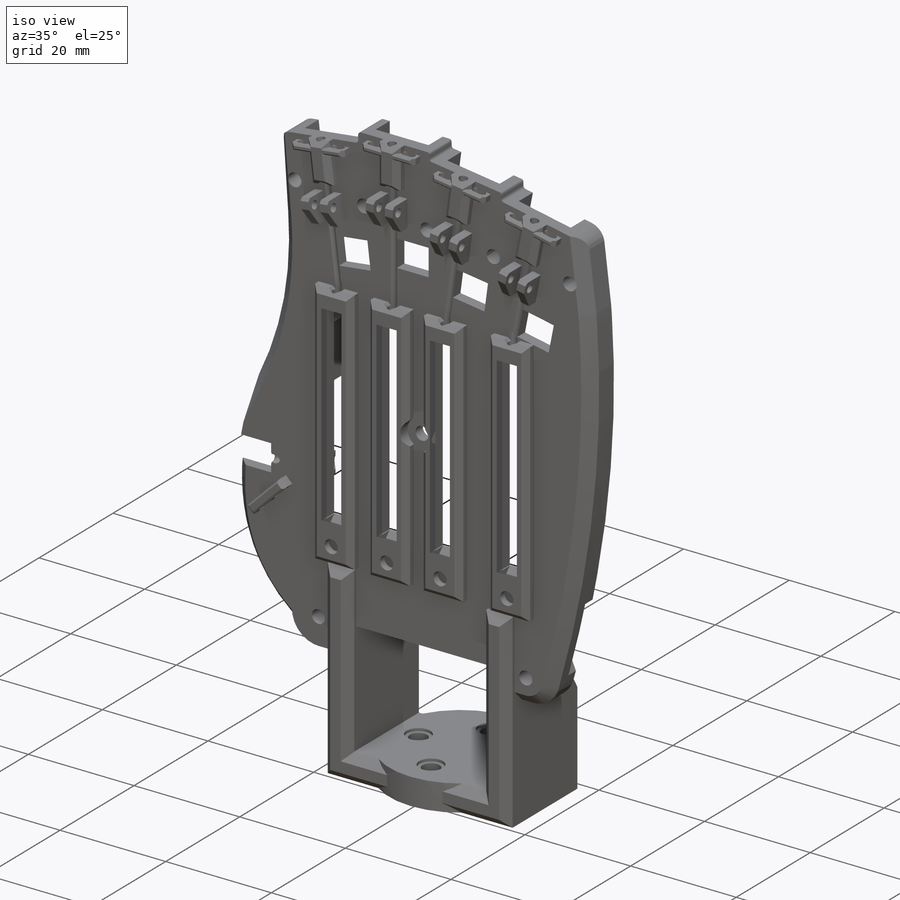
[diagram: iso view]
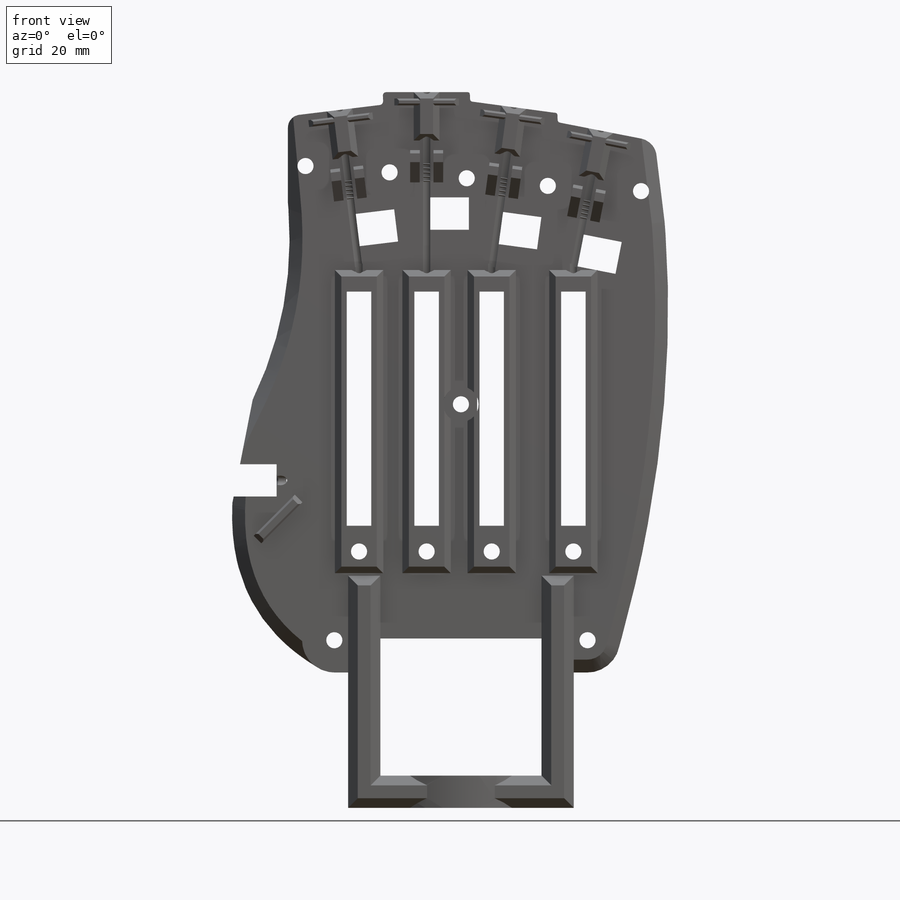
[diagram: front view]
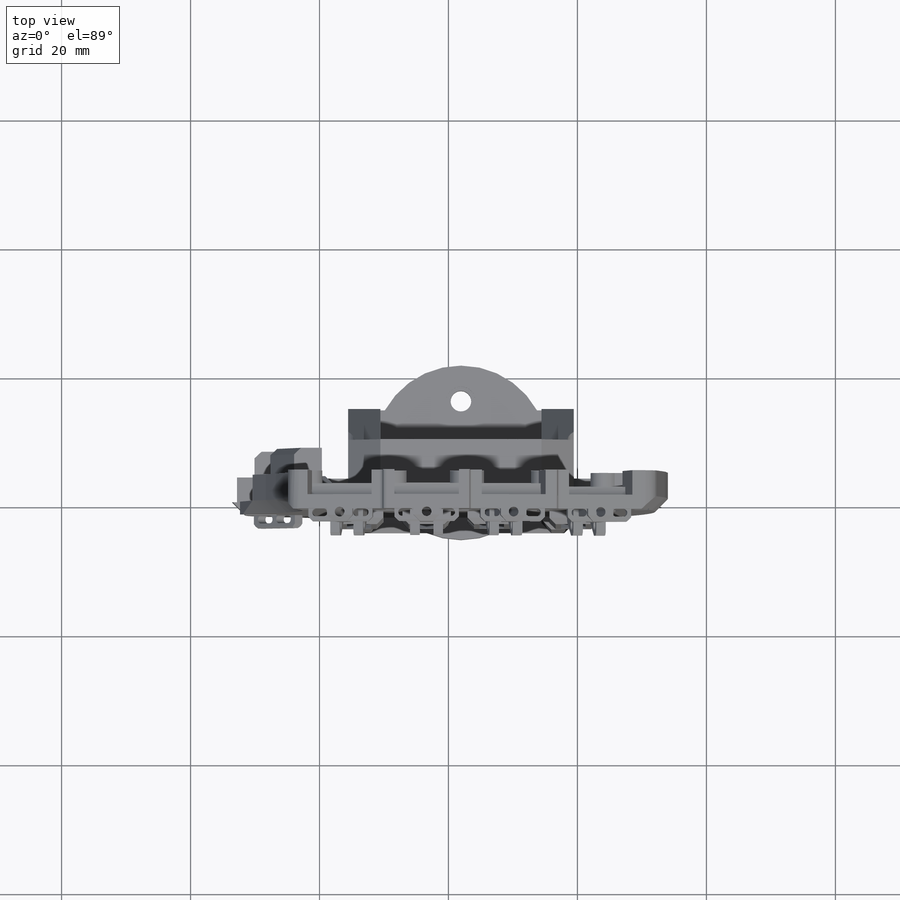
[diagram: top view]
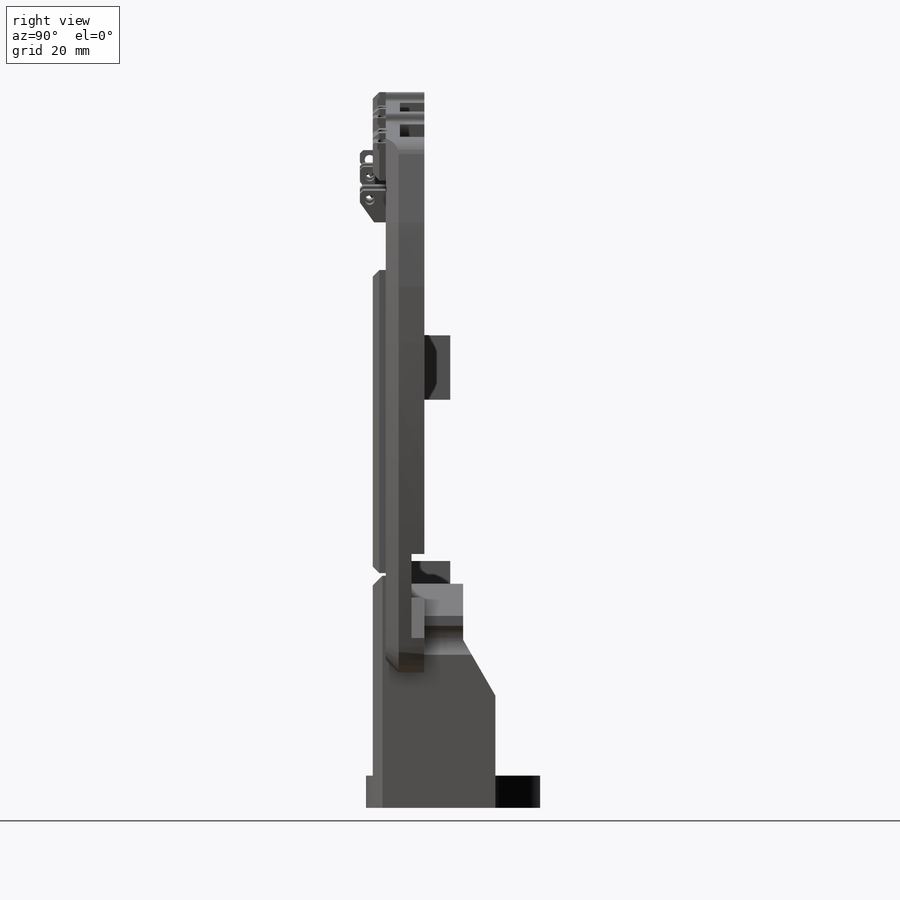
[diagram: right view]
SOLIDWORKS PART (.sldprt)
format: sldprt  version: not decoded by parser v0  size: 3,172,864 bytes
history: native  units: mm
features: sketch x75, cut_extrude x49, chamfer x25, extrude x24, plane x12, material x1 (+21 scaffold rows collapsed; 8 parser-record rows omitted)
feature tree (215):
  scaffold x21  (default folders/planes/origin — collapsed)
  material  "Material <not specified>"
  sketch  "Sketch1"  dims[D1=74.0mm D2=90.0mm]
  sketch  "Sketch2"  dims[c1.D11=5.0mm c1.D12=5.0mm c1.D13=5.0mm c1.D14=2.0mm c1.D2=3.0mm c1.D15=~4.769679mm c2.D11=~5.103098mm c2.D1=45.0mm c2.D2=13.0mm c2.D3=12.5mm c2.D4=1.0mm c2.D5=1.0mm c2.D6=12.5mm c2.D7=1.0mm c2.D8=13.0mm c2.D9=2.0mm c2.D10=1.5mm c2.D15=~39.262421mm c3.D11=12.5mm c3.D8=12.5mm c4.D11=12.5mm c4.D15=16.0mm]
  extrude  "Boss-Extrude1"  Depth=2mm
  sketch  "Sketch28"  dims[D1=8.0mm D2=8.0mm D3=8.0mm D4=8.0mm D5=5.0mm D6=25.0mm]
  cut_extrude  "Cut-Extrude18"  Depth=4mm
  parser-record x8  (decoder bookkeeping rows leaked as tree rows — omitted from the tree; the rows remain in map.json)
  plane  "Plane1"
  plane  "Plane2"
  plane  "Plane3"
  plane  "Plane4"
  plane  "Plane10"
  plane  "Plane5"  Offset=4mm
  plane  "Plane6"  Offset=4mm
  plane  "Plane7"  Offset=4mm
  plane  "Plane8"  Offset=4mm
  plane  "Plane11"  Offset=3mm
  sketch  "Sketch4"  dims[c1.D1=4.0mm c1.D2=2.0mm c2.D1=4.0mm c2.D2=4.0mm c2.D3=4.0mm c2.D4=4.0mm c2.D5=7.5mm c2.D6=15.0mm c2.D7=15.0mm c2.D8=15.0mm]
  extrude  "Wire gauge"  Depth=2mm
  chamfer  "Wire gauge chanfer"  Distance=1mm Angle=45deg
  sketch  "Sketch82"  dims[c1.D1=3.5mm c1.D2=3.5mm c1.D3=3.5mm c1.D4=7.5mm c1.D5=47.0mm c1.D6=0.0mm c2.D1=6.5mm c2.D2=6.5mm c2.D3=6.5mm]
  extrude  "Boss-Extrude18"  Depth=2mm
  chamfer  "Chamfer19"  Distance=1mm Angle=45deg
  sketch  "Sketch85"  dims[D1=3.0mm D2=7.0mm D3=1.5mm D4=3.5mm]
  cut_extrude  "Cut-Extrude50"  [1 undecoded]
  sketch  "Sketch86"  dims[D1=1.5mm D2=1.5mm D3=1.5mm D4=1.5mm D5=1.5mm]
  cut_extrude  "Cut-Extrude52"  Depth=5mm
  sketch  "Sketch88"  dims[D1=2.5mm D2=4.0mm]
  cut_extrude  "Cut-Extrude53"  [1 undecoded]
  sketch  "Sketch89"  dims[D1=0.2mm D2=0.2mm D3=0.2mm D4=0.2mm D5=0.2mm D6=1.5mm]
  cut_extrude  "Cut-Extrude54"  Depth=5.8mm
  sketch  "Sketch90"  dims[D1=10.0mm D2=8.0mm]
  extrude  "Boss-Extrude19"  Depth=8mm
  sketch  "Sketch91"  dims[D1=3.5mm D2=8.0mm]
  cut_extrude  "Cut-Extrude55"  Depth=6mm
  plane  "Plane12"
  sketch  "Sketch105"  dims[D1=4.5mm]
  cut_extrude  "Cut-Extrude67"  Depth=6mm
  sketch  "Sketch6"  dims[D1=1.5mm D2=1.5mm]
  cut_extrude  "Cut-Extrude3"  Depth=21.5mm
  sketch  "Sketch12"  dims[D2=1.5mm D1=1.5mm]
  cut_extrude  "Cut-Extrude6"  Depth=25mm
  sketch  "Sketch13"  dims[D1=1.5mm D2=1.5mm]
  cut_extrude  "Cut-Extrude7"  Depth=27mm
  sketch  "Sketch14"  dims[D1=1.5mm D2=1.5mm]
  cut_extrude  "Cut-Extrude8"  Depth=24.5mm
  sketch  "Sketch43"  dims[D1=1.0mm D2=10.0mm D3=3.0mm]
  cut_extrude  "Cut-Extrude23"  Depth=3.77mm
  sketch  "Sketch45"  dims[D1=4.0mm]
  cut_extrude  "Cut-Extrude25"  Depth=10mm
  sketch  "Sketch46"  dims[D1=2.5mm]
  cut_extrude  "Cut-Extrude27"  [1 undecoded]
  sketch  "Sketch48"  dims[D1=10.0mm D2=1.0mm D3=3.0mm]
  cut_extrude  "Cut-Extrude28"  Depth=3.77mm
  sketch  "Sketch49"  dims[D1=4.0mm]
  cut_extrude  "Cut-Extrude29"  Depth=10mm
  sketch  "Sketch51"
  cut_extrude  "Cut-Extrude30"  [1 undecoded]
  sketch  "Sketch52"  dims[D1=1.0mm D2=10.0mm D3=3.0mm]
  cut_extrude  "Cut-Extrude31"  Depth=3.77mm
  sketch  "Sketch53"  dims[D1=4.0mm]
  cut_extrude  "Cut-Extrude32"  Depth=10mm
  sketch  "Sketch54"
  cut_extrude  "Cut-Extrude33"  [1 undecoded]
  sketch  "Sketch55"  dims[D1=1.0mm D2=3.0mm D3=10.0mm]
  cut_extrude  "Cut-Extrude34"  Depth=3.77mm
  sketch  "Sketch56"  dims[D1=4.0mm]
  cut_extrude  "Cut-Extrude35"  Depth=10mm
  sketch  "Sketch57"
  cut_extrude  "Cut-Extrude38"  [1 undecoded]
  sketch  "Sketch59"  dims[D1=5.2mm D2=14.5mm D3=12.5mm D4=12.0mm]
  extrude  "Boss-Extrude4"  [1 undecoded]
  sketch  "Sketch61"  dims[D1=2.5mm]
  cut_extrude  "Cut-Extrude39"  [1 undecoded]
  sketch  "Sketch64"  dims[D1=15.0mm D2=5.0mm D3=25.0mm D4=12.5mm]
  sketch  "Sketch67"  dims[D1=16.0mm]
  extrude  "Boss-Extrude6"  Depth=2mm
  extrude  "Boss-Extrude7"  Depth=2mm
  sketch  "Sketch68"  dims[D1=6.0mm]
  extrude  "Boss-Extrude9"  [1 undecoded]
  sketch  "Sketch70"
  extrude  "Boss-Extrude11"  Depth=5mm
  chamfer  "Chamfer7"  Distance=1.5mm Angle=45deg
  sketch  "Sketch71"  dims[D1=7.0mm]
  extrude  "Boss-Extrude12"  [1 undecoded]
  sketch  "Sketch72"  dims[D1=0.0mm]
  cut_extrude  "Cut-Extrude41"  [1 undecoded]
  chamfer  "Chamfer8"  Distance=5mm Angle=45deg
  sketch  "Sketch76"  dims[D1=27.0mm]
  extrude  "Boss-Extrude13"  [1 undecoded]
  sketch  "Sketch77"  dims[D2=3.2mm D1=8.0mm]
  cut_extrude  "Cut-Extrude45"  [1 undecoded]
  sketch  "Sketch79"  dims[D1=4.5mm]
  cut_extrude  "Cut-Extrude46"  Depth=0.5mm
  sketch  "Sketch80"
  extrude  "Boss-Extrude14"  [1 undecoded]
  sketch  "Sketch81"  dims[D1=0.0mm]
  extrude  "Boss-Extrude15"  Depth=6mm
  chamfer  "Chamfer17"  Distance=10.35mm Angle=30deg
  chamfer  "Chamfer15"  Distance=2mm Angle=45deg
  sketch  "Sketch98"  dims[D1=5.0mm D2=8.0mm D3=5.0mm D4=22.0mm]
  cut_extrude  "Cut-Extrude62"  Depth=2mm
  sketch  "Sketch100"  dims[c1.D1=4.0mm c1.D6=4.0mm c1.D2=2.0mm c1.D3=2.0mm c1.D4=2.0mm c1.D5=2.0mm c1.D7=2.0mm c1.D8=~12.837298mm c2.D8=~3.524863deg c3.D8=6.418mm]
  extrude  "Boss-Extrude23"  [1 undecoded]
  sketch  "Sketch106"  dims[D1=5.0mm D2=7.0mm D3=5.0mm]
  cut_extrude  "Cut-Extrude68"  [1 undecoded]
  sketch  "Sketch107"  dims[D1=8.0mm D2=0.5mm]
  cut_extrude  "Cut-Extrude69"  [1 undecoded]
  sketch  "Sketch108"  dims[c1.D1=0.5mm c1.D2=~8.779986mm c2.D2=90.0deg c3.D2=8.0mm]
  cut_extrude  "Cut-Extrude70"  [1 undecoded]
  sketch  "Sketch109"  dims[D1=0.5mm D2=8.0mm]
  cut_extrude  "Cut-Extrude71"  [1 undecoded]
  sketch  "Sketch110"  dims[D1=0.5mm D2=8.0mm]
  cut_extrude  "Cut-Extrude72"  [1 undecoded]
  sketch  "Sketch111"  dims[D1=2.5mm D2=28.0mm]
  sketch  "Sketch113"  dims[D1=6.2mm]
  cut_extrude  "Cut-Extrude75"  Depth=14mm
  chamfer  "Chamfer20"  Distance=2mm Angle=45deg
  chamfer  "Chamfer21"  Distance=2mm Angle=45deg
  cut_extrude  "Cut-Extrude78"  [1 undecoded]
  sketch  "Sketch117"  dims[D1=2.5mm D2=6.5mm D3=2.0mm]
  cut_extrude  "Cut-Extrude80"  [1 undecoded]
  sketch  "Sketch118"  dims[D1=6.3mm D2=2.5mm D3=2.5mm D4=2.5mm D5=2.0mm]
  extrude  "Boss-Extrude26"  [1 undecoded]
  sketch  "Sketch120"  dims[D1=21.0mm D2=9.0mm]
  extrude  "Boss-Extrude28"  Depth=1.5mm
  chamfer  "Chamfer22"  Distance=1mm Angle=45deg
  chamfer  "Chamfer23"  Distance=1mm Angle=45deg
  chamfer  "Chamfer26"  Distance=0.5mm Angle=45deg
  chamfer  "Chamfer28"  Distance=1mm Angle=45deg
  plane  "Plane13"
  sketch  "Sketch122"  dims[D1=4.0mm D2=1.5mm D3=4.0mm]
  extrude  "Boss-Extrude29"  Depth=4mm
  chamfer  "Chamfer29"  Distance=1.5mm Angle=45deg
  sketch  "Sketch123"  dims[D1=1.5mm D2=2.0mm]
  cut_extrude  "Cut-Extrude82"  Depth=4mm
  sketch  "Sketch121"  dims[D1=1.5mm]
  cut_extrude  "Cut-Extrude81"  Depth=4mm
  chamfer  "Chamfer30"  Distance=0.5mm Angle=45deg
  chamfer  "Chamfer31"  Distance=0.5mm Angle=45deg
  sketch  "Sketch124"  dims[D1=5.5mm D2=5.0mm]
  cut_extrude  "Cut-Extrude83"  Depth=7mm
  sketch  "Sketch125"
  sketch  "Sketch136"  dims[D1=4.0mm D2=4.0mm D3=4.0mm D4=4.0mm]
  extrude  "Boss-Extrude35"  [1 undecoded]
  chamfer  "Chamfer33"  Distance=0.3mm Angle=45deg
  chamfer  "Chamfer34"  Distance=0.7mm Angle=45deg
  sketch  "Sketch138"  dims[D1=0.6mm D2=0.6mm D3=1.2mm D4=0.6mm]
  cut_extrude  "Cut-Extrude91"  [1 undecoded]
  sketch  "Sketch139"  dims[D1=0.6mm D2=0.6mm]
  cut_extrude  "Cut-Extrude92"  [1 undecoded]
  sketch  "Sketch140"  dims[D1=0.6mm D2=0.6mm]
  cut_extrude  "Cut-Extrude93"  [1 undecoded]
  sketch  "Sketch141"  dims[D1=0.6mm D2=0.6mm]
  cut_extrude  "Cut-Extrude94"  [1 undecoded]
  sketch  "Sketch142"  dims[D1=5.0mm D2=1.5mm D3=0.5mm D4=0.5mm D5=0.5mm D6=0.5mm D7=0.5mm D8=0.5mm D9=0.5mm D10=0.5mm D11=1.5mm D12=1.5mm D13=1.5mm D14=1.5mm]
  extrude  "Boss-Extrude36"  Depth=4mm
  sketch  "Sketch143"  dims[D2=1.5mm D1=1.5mm D3=1.5mm]
  cut_extrude  "Cut-Extrude95"  [1 undecoded]
  sketch  "Sketch144"  dims[c1.D1=1.5mm c1.D3=1.5mm c1.D2=1.5mm c2.D3=1.5mm]
  cut_extrude  "Cut-Extrude96"  [1 undecoded]
  sketch  "Sketch145"  dims[D1=1.5mm D2=1.5mm D3=1.5mm]
  cut_extrude  "Cut-Extrude97"  [1 undecoded]
  sketch  "Sketch146"  dims[c1.D1=1.5mm c1.D3=1.5mm c1.D2=1.5mm c2.D3=1.5mm]
  cut_extrude  "Cut-Extrude98"  [1 undecoded]
  chamfer  "Chamfer35"  Distance=0.5mm Angle=45deg
  chamfer  "Chamfer36"  Distance=2.2mm Angle=55deg
  sketch  "Sketch147"  dims[D1=2.3mm D2=6.0mm D3=6.0mm D4=6.0mm D5=5.0mm D6=6.0mm D7=2.0mm D8=2.0mm D9=2.0mm D10=2.0mm]
  cut_extrude  "Cut-Extrude99"  [1 undecoded]
  sketch  "Sketch148"  dims[c1.D1=0.25mm c1.D2=0.4mm c1.D3=0.4mm c1.D4=0.4mm c1.D5=0.4mm c1.D6=0.4mm c1.D7=0.6mm c2.D1=0.1mm c2.D5=0.25mm]
  extrude  "Boss-Extrude37"  Depth=0.5mm
  chamfer  "Chamfer37"  Distance=0.1mm Angle=45deg
  sketch  "Sketch150"  dims[c1.D1=0.25mm c1.D2=0.4mm c1.D3=0.4mm c1.D4=0.4mm c1.D5=0.4mm c1.D6=0.4mm c1.D7=0.6mm c2.D1=0.1mm c2.D5=0.25mm c3.D1=0.1mm]
  extrude  "Boss-Extrude38"  Depth=0.5mm
  chamfer  "Chamfer38"  Distance=0.1mm Angle=45deg
  sketch  "Sketch151"  dims[D1=0.4mm D2=0.4mm D3=0.4mm D4=0.4mm D5=0.25mm D6=0.1mm]
  extrude  "Boss-Extrude39"  Depth=0.5mm
  chamfer  "Chamfer39"  Distance=0.1mm Angle=45deg
  sketch  "Sketch152"  dims[D1=0.4mm D2=0.4mm D3=0.4mm D4=0.4mm D5=0.25mm D6=0.1mm]
  extrude  "Boss-Extrude40"  Depth=0.5mm
  chamfer  "Chamfer40"  Distance=0.1mm Angle=45deg
  sketch  "Sketch155"  dims[D1=9.0mm]
  extrude  "Boss-Extrude42"  [1 undecoded]
  sketch  "Sketch156"  dims[D2=0.6mm D1=2.0mm D3=2.0mm D4=1.5mm D5=1.5mm]
  cut_extrude  "Cut-Extrude101"  [1 undecoded]
  chamfer  "Chamfer41"  Distance=0.3mm Angle=45deg
  chamfer  "Chamfer42"  Distance=0.7mm Angle=45deg
decode coverage: 132 of 173 modeling features carry decoded parameters
note: ~ marks probable driven/reference dimensions
note: 35 parameter values undecoded
summary: no parameter record found for 35 features
note: suppression state not decoded; provenance and decode notes live in map.json
